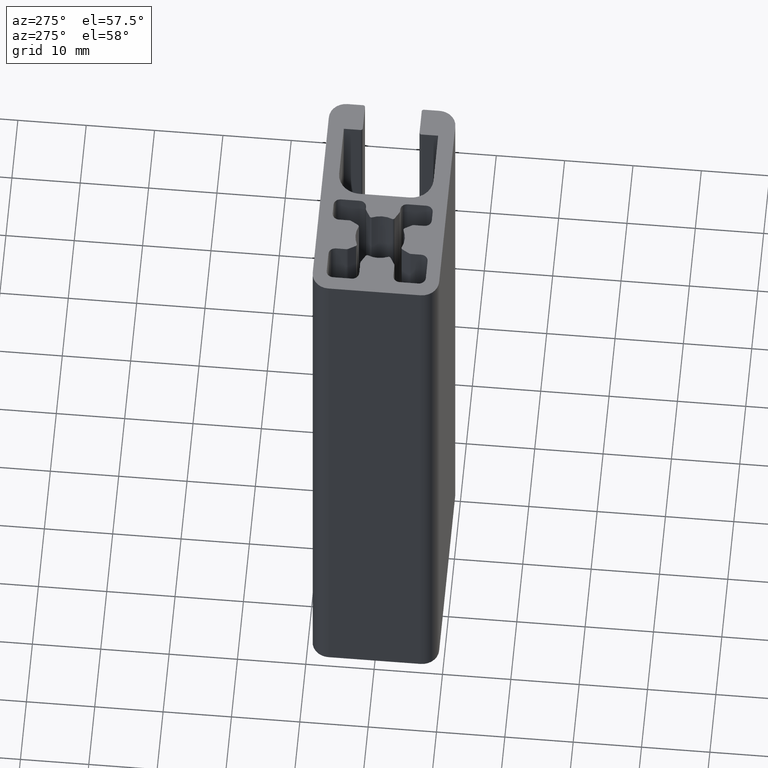
[diagram: clean part render]
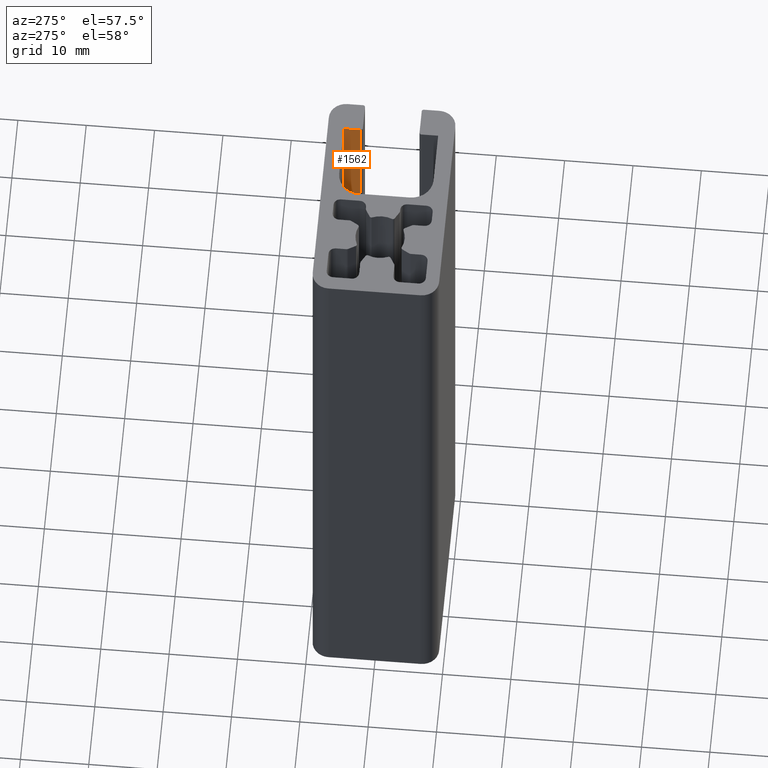
[diagram: same view with one face highlighted and labeled with its STEP entity id]
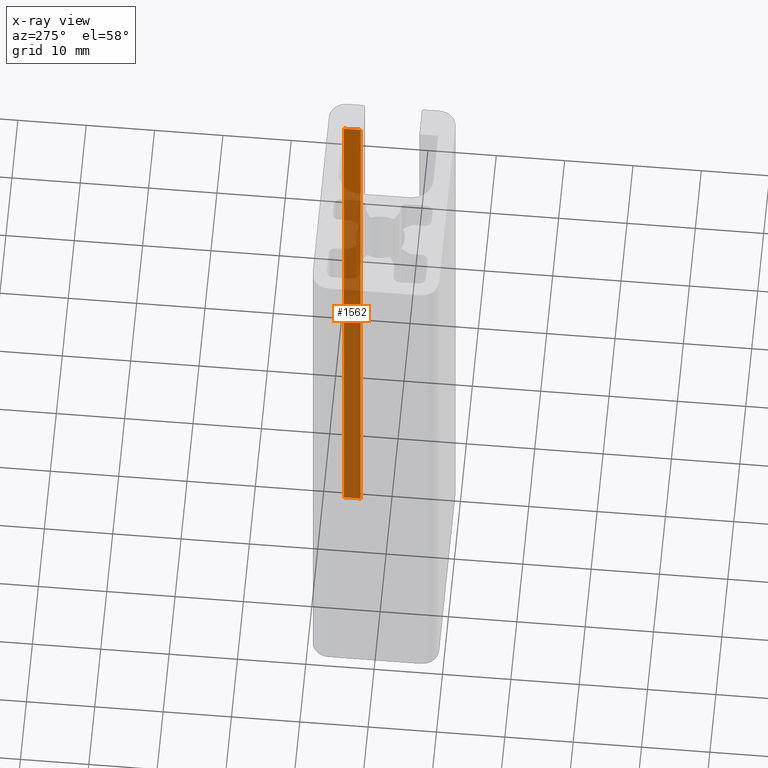
[diagram: x-ray of the same camera — body ghosted, the highlighted face saturated]
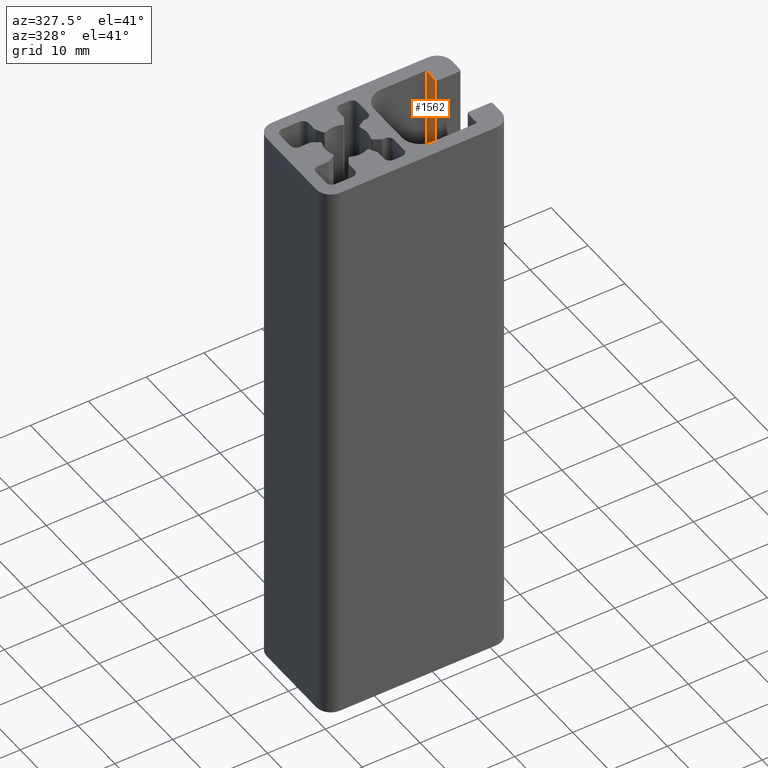
[diagram: same view with one face highlighted and labeled with its STEP entity id]
A machine part, auxiliary view. The second image highlights one B-rep face of the part: STEP entity #1562.
The next image is the same camera in x-ray: the body ghosted, the highlighted face saturated — about 83% of this face is hidden behind the body in this view.
A second angle (auxiliary view) of the same face is appended — the face is thin or edge-on in the first view.
In plain terms, the highlighted planar face has unit normal (1, 0, 0).
Its self-contained STEP definition (entity closure, byte-faithful):
#204=FACE_OUTER_BOUND('',#285,.T.);
#285=EDGE_LOOP('',(#1313,#1314,#1315,#1316));
#414=LINE('',#2573,#564);
#427=LINE('',#2627,#577);
#428=LINE('',#2631,#578);
#429=LINE('',#2632,#579);
#564=VECTOR('',#2084,2.45);
#577=VECTOR('',#2145,100.);
#578=VECTOR('',#2150,100.);
#579=VECTOR('',#2151,2.45);
#726=VERTEX_POINT('',#2570);
#727=VERTEX_POINT('',#2572);
#744=VERTEX_POINT('',#2626);
#745=VERTEX_POINT('',#2630);
#930=EDGE_CURVE('',#726,#727,#414,.T.);
#959=EDGE_CURVE('',#744,#727,#427,.T.);
#961=EDGE_CURVE('',#745,#726,#428,.T.);
#962=EDGE_CURVE('',#744,#745,#429,.T.);
#1313=ORIENTED_EDGE('',*,*,#930,.F.);
#1314=ORIENTED_EDGE('',*,*,#961,.F.);
#1315=ORIENTED_EDGE('',*,*,#962,.F.);
#1316=ORIENTED_EDGE('',*,*,#959,.T.);
#1489=PLANE('',#1721);
#1562=ADVANCED_FACE('',(#204),#1489,.F.);
#1721=AXIS2_PLACEMENT_3D('',#2629,#2148,#2149);
#2084=DIRECTION('',(4.62215300048024E-13,-1.,0.));
#2145=DIRECTION('',(0.,0.,1.));
#2148=DIRECTION('center_axis',(1.,4.62215300048024E-13,0.));
#2149=DIRECTION('ref_axis',(0.,0.,-1.));
#2150=DIRECTION('',(0.,0.,1.));
#2151=DIRECTION('',(-4.62215300048024E-13,1.,0.));
#2570=CARTESIAN_POINT('',(18.2,6.9,100.));
#2572=CARTESIAN_POINT('',(18.2000000000011,4.45,100.));
#2573=CARTESIAN_POINT('',(18.2000000000016,3.4500000000027,100.));
#2626=CARTESIAN_POINT('',(18.2000000000011,4.45,0.));
#2627=CARTESIAN_POINT('',(18.2000000000011,4.45,0.));
#2629=CARTESIAN_POINT('Origin',(18.2,6.9,0.));
#2630=CARTESIAN_POINT('',(18.2,6.9,0.));
#2631=CARTESIAN_POINT('',(18.2,6.9,0.));
#2632=CARTESIAN_POINT('',(18.2000000000016,3.4500000000027,0.));